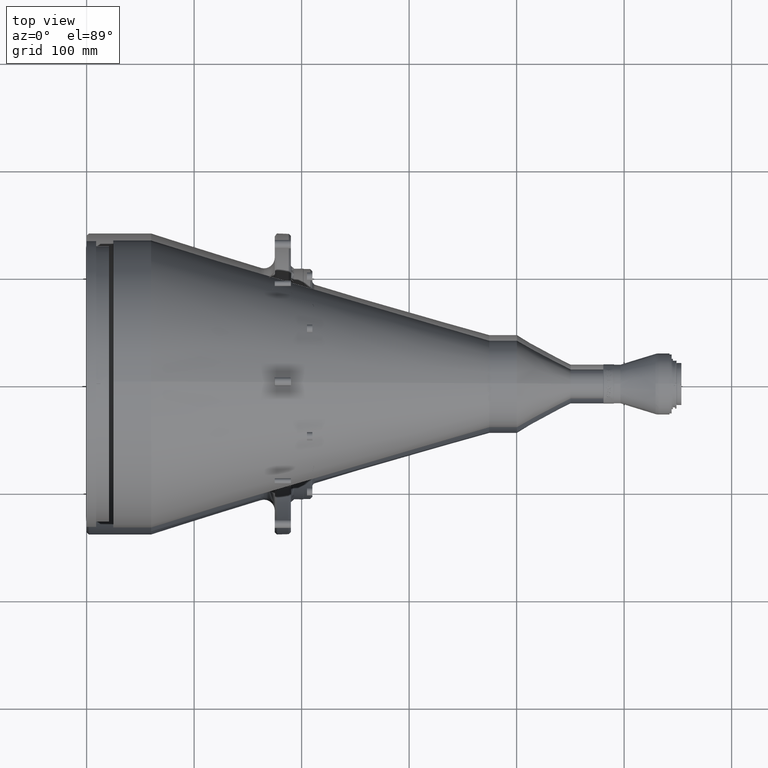
[diagram: clean part render]
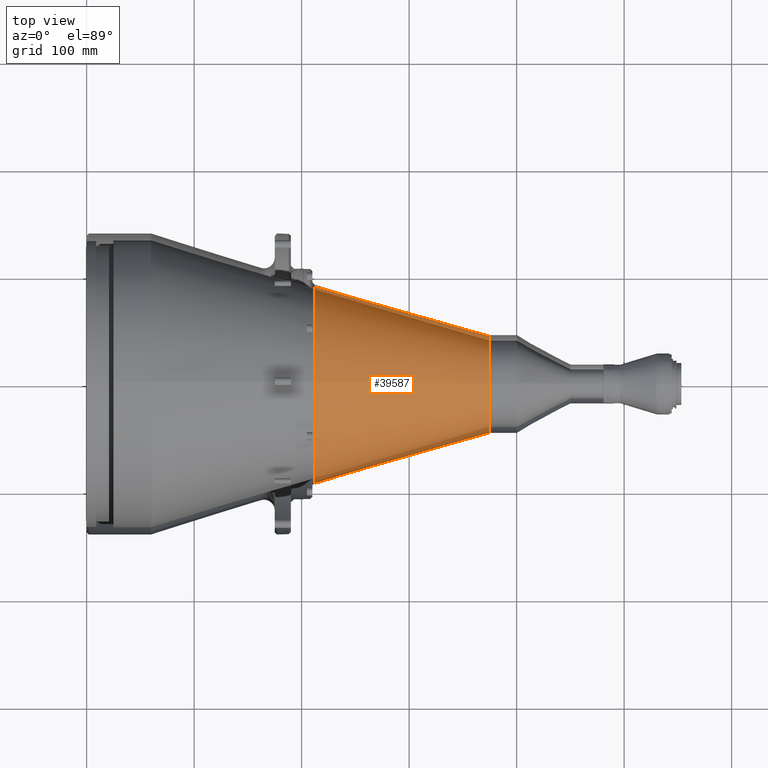
[diagram: same view with one face highlighted and labeled with its STEP entity id]
A machine part, top view. The second image highlights one B-rep face of the part: STEP entity #39587.
In plain terms, the highlighted conical surface has half-angle 16.106 deg.
Its self-contained STEP definition (entity closure, byte-faithful):
#425 = CARTESIAN_POINT ( 'NONE',  ( 212.1677403976009941, 2.263973822298859927E-11, 92.37405672339269813 ) ) ;
#704 = CARTESIAN_POINT ( 'NONE',  ( 212.1677403976149208, -29.76436750272639387, 87.65615381170754006 ) ) ;
#777 = CARTESIAN_POINT ( 'NONE',  ( 374.5000000252640007, 42.92781545998033010, 15.33347587772701637 ) ) ;
#1323 = CARTESIAN_POINT ( 'NONE',  ( 374.5000000252640575, 8.770657782889619725, 44.73240866211475009 ) ) ;
#1750 = EDGE_CURVE ( 'NONE', #14631, #25937, #30391, .T. ) ;
#1929 = CARTESIAN_POINT ( 'NONE',  ( 212.1677403976107428, 25.67520461017799960, 88.88604132749657083 ) ) ;
#2196 = CARTESIAN_POINT ( 'NONE',  ( 212.1677403976091796, 35.47770335819628684, 85.44751043229673826 ) ) ;
#2466 = CARTESIAN_POINT ( 'NONE',  ( 212.1677403974494780, 90.12103095018480303, 20.27723196319429988 ) ) ;
#2624 = B_SPLINE_CURVE_WITH_KNOTS ( 'NONE', 3,
 ( #32611, #54593, #49600, #11483 ),
 .UNSPECIFIED., .F., .F.,
 ( 4, 4 ),
 ( 0.000000000000000000, 0.06581045388277845243 ),
 .UNSPECIFIED. ) ;
#3334 = ORIENTED_EDGE ( 'NONE', *, *, #4039, .F. ) ;
#3556 = CARTESIAN_POINT ( 'NONE',  ( 374.5000000252641144, -45.24668051948123093, 5.536309657801396611 ) ) ;
#4039 = EDGE_CURVE ( 'NONE', #23309, #14631, #31465, .T. ) ;
#4384 = CARTESIAN_POINT ( 'NONE',  ( 374.5000000252641144, -25.64253252426647833, 37.68784085618300850 ) ) ;
#4416 = EDGE_CURVE ( 'NONE', #16627, #16263, #30193, .T. ) ;
#4940 = CARTESIAN_POINT ( 'NONE',  ( 374.5000000252640575, 16.74416422598858389, 42.39747382842657686 ) ) ;
#5222 = CARTESIAN_POINT ( 'NONE',  ( 374.5000000252640575, 24.16142581298923986, 38.65408549354648216 ) ) ;
#6367 = CARTESIAN_POINT ( 'NONE',  ( 212.1677403976078153, 40.23353646573677622, 83.31390651092348776 ) ) ;
#6680 = ORIENTED_EDGE ( 'NONE', *, *, #10449, .F. ) ;
#7186 = CARTESIAN_POINT ( 'NONE',  ( 212.1677403975516825, 88.98087439992036707, 25.34459440793969520 ) ) ;
#7469 = CARTESIAN_POINT ( 'NONE',  ( 374.5000000252863970, -44.39024389892438904, -9.987804877043670260 ) ) ;
#7741 = CARTESIAN_POINT ( 'NONE',  ( 374.5000000252680366, -45.49999999636539627, 4.112648967899065080E-15 ) ) ;
#9070 = CARTESIAN_POINT ( 'NONE',  ( 212.1677403975520519, -89.41962481506406846, 23.95098269086749099 ) ) ;
#9114 = FACE_OUTER_BOUND ( 'NONE', #12550, .T. ) ;
#9349 = CARTESIAN_POINT ( 'NONE',  ( 212.1677403975286325, -92.37405672360043241, 6.045867874683511722 ) ) ;
#9624 = CARTESIAN_POINT ( 'NONE',  ( 227.1023082986363875, -85.91379853653072018, -19.33060467081877931 ) ) ;
#9694 = CARTESIAN_POINT ( 'NONE',  ( 374.5000000252640575, 14.12885911669510541, 43.33922199024314637 ) ) ;
#9975 = CARTESIAN_POINT ( 'NONE',  ( 374.5000000252640575, -2.273384974381213119, 45.52740431231799789 ) ) ;
#10240 = CARTESIAN_POINT ( 'NONE',  ( 374.5000000252641712, -18.37604851888064417, 41.71610796192253900 ) ) ;
#10449 = EDGE_CURVE ( 'NONE', #34285, #23309, #25420, .T. ) ;
#11483 = CARTESIAN_POINT ( 'NONE',  ( 212.1677403975327820, -90.12103094987375584, -20.27723196385277404 ) ) ;
#12479 = CARTESIAN_POINT ( 'NONE',  ( 374.5000000252680366, -45.49999999636539627, 4.112648967899065080E-15 ) ) ;
#12550 = EDGE_LOOP ( 'NONE', ( #43048, #3334, #6680, #53901, #35214, #50790, #18711 ) ) ;
#12755 = CARTESIAN_POINT ( 'NONE',  ( 374.5000000252641144, -35.74948372605202707, 28.28227777212780936 ) ) ;
#13132 = DIRECTION ( 'NONE',  ( -0.9607487813155691780, 0.2706535227928571485, 0.06089704262494862602 ) ) ;
#13237 = CARTESIAN_POINT ( 'NONE',  ( 212.1677403975903928, -73.44731690676448466, 56.34723163659757006 ) ) ;
#13569 = CARTESIAN_POINT ( 'NONE',  ( 227.1023082985759913, 2.098055063015639960E-10, -2.743161253704329800E-10 ) ) ;
#14071 = CARTESIAN_POINT ( 'NONE',  ( 212.1677403975953382, -69.59339608724518200, 61.04324774250576979 ) ) ;
#14134 = CARTESIAN_POINT ( 'NONE',  ( 374.5000000252640575, -15.79923934537011831, 42.75858812878109205 ) ) ;
#14453 = CARTESIAN_POINT ( 'NONE',  ( 212.1677403975712366, 81.08206857622397479, 44.56055015447222445 ) ) ;
#14631 = VERTEX_POINT ( 'NONE', #36440 ) ;
#14723 = CARTESIAN_POINT ( 'NONE',  ( 212.1677403976039216, 49.31961943306252039, 78.27847477838950851 ) ) ;
#15697 = VECTOR ( 'NONE', #48288, 999.9999999999998863 ) ;
#16263 = VERTEX_POINT ( 'NONE', #32276 ) ;
#16627 = VERTEX_POINT ( 'NONE', #26009 ) ;
#16635 = CARTESIAN_POINT ( 'NONE',  ( 374.5000000252640007, -41.51387633556240786, 18.82845968885110111 ) ) ;
#17403 = CARTESIAN_POINT ( 'NONE',  ( 212.1677403976100038, -6.045867874661530195, 92.37405672341343177 ) ) ;
#17451 = DIRECTION ( 'NONE',  ( 6.858392614434101667E-13, -0.9756097560981011885, -0.2195121951195500576 ) ) ;
#17824 = CARTESIAN_POINT ( 'NONE',  ( 374.5000000252680366, -45.49999999636539627, 4.112648967899065080E-15 ) ) ;
#17964 = CARTESIAN_POINT ( 'NONE',  ( 212.1677403976146365, -23.95098269085416831, 89.41962481491974302 ) ) ;
#18711 = ORIENTED_EDGE ( 'NONE', *, *, #44304, .F. ) ;
#19171 = CARTESIAN_POINT ( 'NONE',  ( 212.1677403976009941, 2.263973822298859927E-11, 92.37405672339269813 ) ) ;
#21101 = CARTESIAN_POINT ( 'NONE',  ( 374.5000000252640007, -45.12705905807585793, -6.713070852925832277 ) ) ;
#21372 = CARTESIAN_POINT ( 'NONE',  ( 374.5000000252640007, -23.29774055071989380, 39.18071091609211010 ) ) ;
#21522 = CARTESIAN_POINT ( 'NONE',  ( 212.1677403975327820, -90.12103094987375584, -20.27723196385277404 ) ) ;
#21648 = CARTESIAN_POINT ( 'NONE',  ( 374.5000000252640575, 0.5057881394250450802, 45.58132294061929457 ) ) ;
#22415 = CARTESIAN_POINT ( 'NONE',  ( 212.1677403975593279, -87.65615381183810939, 29.76436750273505538 ) ) ;
#22753 = CARTESIAN_POINT ( 'NONE',  ( 374.5000000252640575, 40.75233114707592108, 20.42450314543855328 ) ) ;
#23309 = VERTEX_POINT ( 'NONE', #17824 ) ;
#23351 = CARTESIAN_POINT ( 'NONE',  ( 212.1677403976087248, 5.194046505930851154, 92.37405672341293439 ) ) ;
#23891 = VERTEX_POINT ( 'NONE', #21522 ) ;
#24991 = CARTESIAN_POINT ( 'NONE',  ( 374.5000000252640575, -43.49025625840722853, 13.65688226635693248 ) ) ;
#25420 = B_SPLINE_CURVE_WITH_KNOTS ( 'NONE', 3,
 ( #7469, #21101, #50599, #7741 ),
 .UNSPECIFIED., .F., .F.,
 ( 4, 4 ),
 ( 0.9295534250469071891, 1.000000000000000000 ),
 .UNSPECIFIED. ) ;
#25937 = VERTEX_POINT ( 'NONE', #29405 ) ;
#26009 = CARTESIAN_POINT ( 'NONE',  ( 212.1677403976009941, 2.263973822298859927E-11, 92.37405672339269813 ) ) ;
#26105 = CARTESIAN_POINT ( 'NONE',  ( 374.5000000252641144, 30.77603946587455042, 33.62659984973069527 ) ) ;
#26321 = CARTESIAN_POINT ( 'NONE',  ( 212.1677403976121923, -12.09158625334814730, 91.77860543599491905 ) ) ;
#26661 = CARTESIAN_POINT ( 'NONE',  ( 374.5000000252639438, 39.43166609608137207, 22.87042919461969959 ) ) ;
#27208 = CARTESIAN_POINT ( 'NONE',  ( 374.5000000252640575, 6.027860503812973114, 45.18382144535338085 ) ) ;
#27524 = CARTESIAN_POINT ( 'NONE',  ( 212.1677403975664902, 83.46289850968523183, 39.92354001128668983 ) ) ;
#29405 = CARTESIAN_POINT ( 'NONE',  ( 212.1677403974494780, 90.12103095018480303, 20.27723196319429988 ) ) ;
#29450 = CARTESIAN_POINT ( 'NONE',  ( 374.5000000252640007, -40.28907602100392893, 21.32377021149927998 ) ) ;
#29725 = CARTESIAN_POINT ( 'NONE',  ( 374.5000000252641144, -32.05716590149026501, 32.40757530305804579 ) ) ;
#30193 = B_SPLINE_CURVE_WITH_KNOTS ( 'NONE', 3,
 ( #425, #17403, #26321, #17964, #704, #34372, #52195, #51645, #51365, #14071, #13237, #30215, #47194, #22415, #9070, #47475, #9349, #43268 ),
 .UNSPECIFIED., .F., .F.,
 ( 4, 2, 2, 2, 2, 2, 2, 2, 4 ),
 ( 0.000000000000000000, 0.1249999999999999722, 0.2499999999999999445, 0.3749999999999998890, 0.4999999999999998890, 0.6249999999999998890, 0.7499999999999997780, 0.8749999999999998890, 1.000000000000000000 ),
 .UNSPECIFIED. ) ;
#30215 = CARTESIAN_POINT ( 'NONE',  ( 212.1677403975791947, -80.16512535466706879, 46.29332080101666946 ) ) ;
#30391 = LINE ( 'NONE', #38442, #53348 ) ;
#31422 = CARTESIAN_POINT ( 'NONE',  ( 212.1677403975843390, 72.45010810401163326, 57.54064920019418850 ) ) ;
#31465 = B_SPLINE_CURVE_WITH_KNOTS ( 'NONE', 3,
 ( #12479, #50881, #3556, #54763, #24991, #16635, #29450, #46421, #12755, #29725, #46699, #4384, #21372, #10240, #14134, #43336, #34997, #9975, #21648, #27208, #1323, #9694, #4940, #38886, #5222, #51711, #26105, #39176, #43888, #26661, #22753, #777, #44153, #52262 ),
 .UNSPECIFIED., .F., .F.,
 ( 4, 2, 2, 2, 2, 2, 2, 2, 2, 2, 2, 2, 2, 2, 2, 2, 4 ),
 ( 0.000000000000000000, 0.06250000000000001388, 0.1250000000000000000, 0.1874999999999999722, 0.2499999999999999722, 0.3124999999999999445, 0.3749999999999999445, 0.4375000000000000000, 0.5000000000000000000, 0.5625000000000000000, 0.6250000000000000000, 0.6875000000000000000, 0.7500000000000000000, 0.8125000000000001110, 0.8750000000000001110, 0.9375000000000001110, 1.000000000000000000 ),
 .UNSPECIFIED. ) ;
#31657 = EDGE_CURVE ( 'NONE', #16263, #23891, #2624, .T. ) ;
#32276 = CARTESIAN_POINT ( 'NONE',  ( 212.1677403975130005, -92.37405672358819686, 2.056226247696574998E-14 ) ) ;
#32611 = CARTESIAN_POINT ( 'NONE',  ( 212.1677403975130005, -92.37405672358819686, 2.056226247696574998E-14 ) ) ;
#34285 = VERTEX_POINT ( 'NONE', #48963 ) ;
#34372 = CARTESIAN_POINT ( 'NONE',  ( 212.1677403976135281, -40.93567467410474592, 83.02884687189417434 ) ) ;
#34997 = CARTESIAN_POINT ( 'NONE',  ( 374.5000000252640575, -7.775883898416093842, 44.91601554298168253 ) ) ;
#35214 = ORIENTED_EDGE ( 'NONE', *, *, #31657, .F. ) ;
#35866 = CARTESIAN_POINT ( 'NONE',  ( 212.1677403975801610, 75.57563627040370591, 53.36916410239478381 ) ) ;
#36394 = CARTESIAN_POINT ( 'NONE',  ( 212.1677403976098901, 10.38802301565602804, 91.93494141224299199 ) ) ;
#36440 = CARTESIAN_POINT ( 'NONE',  ( 374.5000000253819508, 44.39024389797739900, 9.987804877029621053 ) ) ;
#38442 = CARTESIAN_POINT ( 'NONE',  ( 227.1023082985155952, 85.91379853695032409, 19.33060467027015505 ) ) ;
#38886 = CARTESIAN_POINT ( 'NONE',  ( 374.5000000252640575, 21.76049389032380788, 40.05488395075144581 ) ) ;
#39176 = CARTESIAN_POINT ( 'NONE',  ( 374.5000000252640007, 34.62558802285399651, 29.64762177191556702 ) ) ;
#39587 = ADVANCED_FACE ( 'NONE', ( #9114 ), #53836, .F. ) ;
#39949 = B_SPLINE_CURVE_WITH_KNOTS ( 'NONE', 3,
 ( #2466, #7186, #49485, #27524, #14453, #35866, #31422, #40049, #40312, #44479, #14723, #6367, #2196, #1929, #48676, #36394, #23351, #19171 ),
 .UNSPECIFIED., .F., .F.,
 ( 4, 2, 2, 2, 2, 2, 2, 2, 4 ),
 ( 0.000000000000000000, 0.1250000000000000833, 0.2500000000000001665, 0.3750000000000002220, 0.5000000000000002220, 0.6250000000000002220, 0.7500000000000001110, 0.8750000000000001110, 1.000000000000000000 ),
 .UNSPECIFIED. ) ;
#40049 = CARTESIAN_POINT ( 'NONE',  ( 212.1677403975919844, 65.54298576240302054, 65.29978171486197880 ) ) ;
#40312 = CARTESIAN_POINT ( 'NONE',  ( 212.1677403975954235, 61.76148466917933888, 68.88732456784946123 ) ) ;
#41659 = EDGE_CURVE ( 'NONE', #34285, #23891, #52729, .T. ) ;
#43048 = ORIENTED_EDGE ( 'NONE', *, *, #1750, .F. ) ;
#43268 = CARTESIAN_POINT ( 'NONE',  ( 212.1677403975130005, -92.37405672358819686, 2.056226247696574998E-14 ) ) ;
#43336 = CARTESIAN_POINT ( 'NONE',  ( 374.5000000252642280, -10.49910809858608296, 44.35855669195321838 ) ) ;
#43888 = CARTESIAN_POINT ( 'NONE',  ( 374.5000000252640575, 36.36826624934533214, 27.48203108716128540 ) ) ;
#44153 = CARTESIAN_POINT ( 'NONE',  ( 374.5000000252639438, 43.78259454903567871, 12.68846867095132325 ) ) ;
#44304 = EDGE_CURVE ( 'NONE', #25937, #16627, #39949, .T. ) ;
#44479 = CARTESIAN_POINT ( 'NONE',  ( 212.1677403976013352, 53.64974684667296856, 75.37671482588213223 ) ) ;
#46421 = CARTESIAN_POINT ( 'NONE',  ( 374.5000000252641144, -37.40685310444531098, 26.05072289748417802 ) ) ;
#46699 = CARTESIAN_POINT ( 'NONE',  ( 374.5000000252640007, -30.02228563827569729, 34.30124178091559628 ) ) ;
#47194 = CARTESIAN_POINT ( 'NONE',  ( 212.1677403975729703, -83.02884687199825464, 40.93567467410171901 ) ) ;
#47475 = CARTESIAN_POINT ( 'NONE',  ( 212.1677403975366758, -91.77860543616750988, 12.09158625336810822 ) ) ;
#48288 = DIRECTION ( 'NONE',  ( -0.9607487813151888156, -0.2706535227929673937, -0.06089704263046222255 ) ) ;
#48676 = CARTESIAN_POINT ( 'NONE',  ( 212.1677403976108849, 20.62867107046134763, 90.19092196287817842 ) ) ;
#48963 = CARTESIAN_POINT ( 'NONE',  ( 374.5000000252863970, -44.39024389892438904, -9.987804877043670260 ) ) ;
#49485 = CARTESIAN_POINT ( 'NONE',  ( 212.1677403975566847, 87.41232803325046063, 30.31549739790796494 ) ) ;
#49600 = CARTESIAN_POINT ( 'NONE',  ( 212.1677403975005234, -91.61691237802881460, -13.62887006098531728 ) ) ;
#50599 = CARTESIAN_POINT ( 'NONE',  ( 374.5000000252640007, -45.49999999999997868, -3.356602375538477290 ) ) ;
#50790 = ORIENTED_EDGE ( 'NONE', *, *, #4416, .F. ) ;
#50881 = CARTESIAN_POINT ( 'NONE',  ( 374.5000000252640007, -45.49999999999997868, 2.768180387739902493 ) ) ;
#51139 = DIRECTION ( 'NONE',  ( -1.000000000000000000, -5.731437587645030129E-14, -2.869440226315939814E-12 ) ) ;
#51365 = CARTESIAN_POINT ( 'NONE',  ( 212.1677403976036373, -61.04324774254154562, 69.59339608718889281 ) ) ;
#51645 = CARTESIAN_POINT ( 'NONE',  ( 212.1677403976070764, -56.34723163662405199, 73.44731690669706836 ) ) ;
#51711 = CARTESIAN_POINT ( 'NONE',  ( 374.5000000252640575, 28.66924022178922726, 35.43991376632173740 ) ) ;
#52195 = CARTESIAN_POINT ( 'NONE',  ( 212.1677403976119365, -46.29332080102673785, 80.16512535457569300 ) ) ;
#52262 = CARTESIAN_POINT ( 'NONE',  ( 374.5000000253819508, 44.39024389797739900, 9.987804877029621053 ) ) ;
#52729 = LINE ( 'NONE', #9624, #15697 ) ;
#52939 = AXIS2_PLACEMENT_3D ( 'NONE', #13569, #51139, #17451 ) ;
#53348 = VECTOR ( 'NONE', #13132, 1000.000000000000114 ) ;
#53836 = CONICAL_SURFACE ( 'NONE', #52939, 88.06164350011027864, 0.2811075136362181093 ) ;
#53901 = ORIENTED_EDGE ( 'NONE', *, *, #41659, .T. ) ;
#54593 = CARTESIAN_POINT ( 'NONE',  ( 212.1677403975106131, -92.37405672363240683, -6.814570950441164676 ) ) ;
#54763 = CARTESIAN_POINT ( 'NONE',  ( 374.5000000252640007, -44.24179937053378353, 10.98071086571817112 ) ) ;